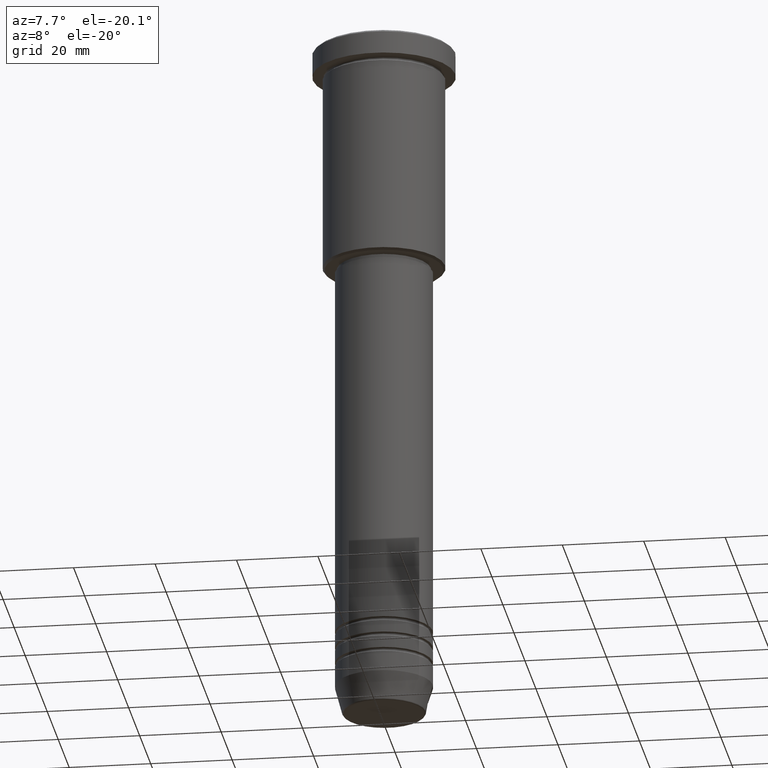
[diagram: clean part render]
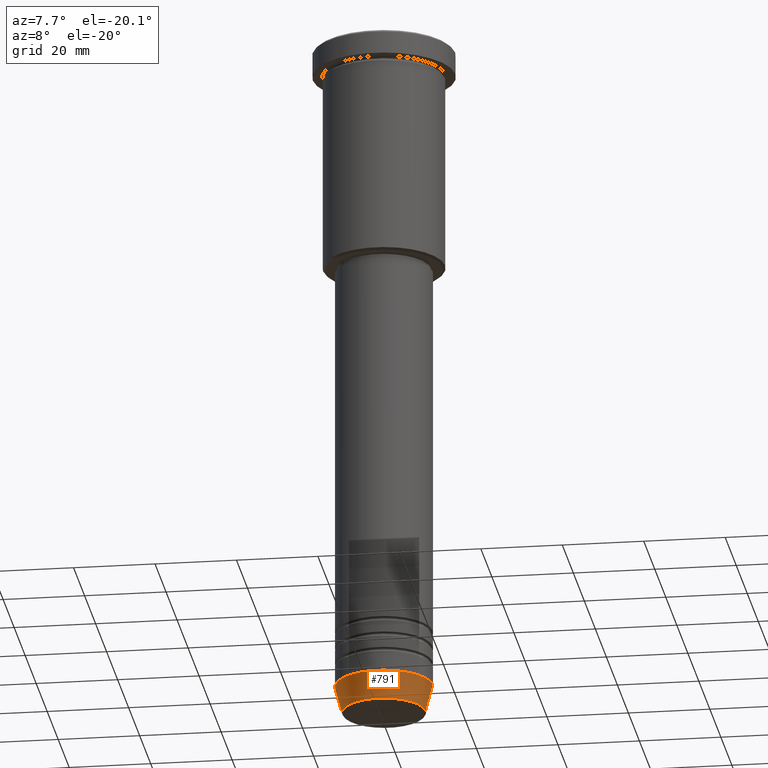
[diagram: same view with one face highlighted and labeled with its STEP entity id]
A machine part, auxiliary view. The second image highlights one B-rep face of the part: STEP entity #791.
In plain terms, the highlighted conical surface has half-angle 15 deg.
Its self-contained STEP definition (entity closure, byte-faithful):
#13 = DIRECTION ( 'NONE',  ( -0.000000000000000000, -0.000000000000000000, 1.000000000000000000 ) ) ;
#21 = ORIENTED_EDGE ( 'NONE', *, *, #370, .T. ) ;
#26 = EDGE_CURVE ( 'NONE', #859, #994, #574, .T. ) ;
#34 = CARTESIAN_POINT ( 'NONE',  ( 0.000000000000000000, 0.000000000000000000, -170.6294095225512706 ) ) ;
#49 = CONICAL_SURFACE ( 'NONE', #718, 12.00000000000000000, 0.2617993877991500740 ) ;
#104 = CARTESIAN_POINT ( 'NONE',  ( 12.00000000000000000, 0.000000000000000000, -164.0000000000000000 ) ) ;
#122 = EDGE_LOOP ( 'NONE', ( #1072, #808, #21, #130 ) ) ;
#130 = ORIENTED_EDGE ( 'NONE', *, *, #26, .F. ) ;
#153 = CARTESIAN_POINT ( 'NONE',  ( -10.22365507213719127, 1.360806402472382744E-15, -170.6294095225512706 ) ) ;
#187 = DIRECTION ( 'NONE',  ( -0.000000000000000000, -0.000000000000000000, 1.000000000000000000 ) ) ;
#199 = CARTESIAN_POINT ( 'NONE',  ( 0.000000000000000000, 0.000000000000000000, -164.0000000000000000 ) ) ;
#204 = DIRECTION ( 'NONE',  ( 1.000000000000000000, 0.000000000000000000, 0.000000000000000000 ) ) ;
#219 = EDGE_CURVE ( 'NONE', #893, #345, #446, .T. ) ;
#220 = DIRECTION ( 'NONE',  ( 1.000000000000000000, 0.000000000000000000, 0.000000000000000000 ) ) ;
#290 = CARTESIAN_POINT ( 'NONE',  ( 0.000000000000000000, 0.000000000000000000, -164.0000000000000000 ) ) ;
#328 = LINE ( 'NONE', #491, #813 ) ;
#345 = VERTEX_POINT ( 'NONE', #876 ) ;
#370 = EDGE_CURVE ( 'NONE', #345, #994, #978, .T. ) ;
#401 = EDGE_CURVE ( 'NONE', #893, #859, #328, .T. ) ;
#403 = DIRECTION ( 'NONE',  ( -0.2588190451025213501, 3.169619151431772337E-17, 0.9659258262890680902 ) ) ;
#438 = CARTESIAN_POINT ( 'NONE',  ( 12.00000000000000000, 0.000000000000000000, -164.0000000000000000 ) ) ;
#446 = CIRCLE ( 'NONE', #863, 10.22365507213719127 ) ;
#476 = FACE_OUTER_BOUND ( 'NONE', #122, .T. ) ;
#491 = CARTESIAN_POINT ( 'NONE',  ( -12.00000000000000000, 1.469576158976823947E-15, -164.0000000000000000 ) ) ;
#574 = CIRCLE ( 'NONE', #830, 12.00000000000000000 ) ;
#664 = CARTESIAN_POINT ( 'NONE',  ( -12.00000000000000000, 1.469576158976823947E-15, -164.0000000000000000 ) ) ;
#718 = AXIS2_PLACEMENT_3D ( 'NONE', #290, #13, #1008 ) ;
#791 = ADVANCED_FACE ( 'NONE', ( #476 ), #49, .T. ) ;
#808 = ORIENTED_EDGE ( 'NONE', *, *, #219, .T. ) ;
#813 = VECTOR ( 'NONE', #403, 1000.000000000000000 ) ;
#830 = AXIS2_PLACEMENT_3D ( 'NONE', #199, #187, #204 ) ;
#859 = VERTEX_POINT ( 'NONE', #664 ) ;
#863 = AXIS2_PLACEMENT_3D ( 'NONE', #34, #1028, #220 ) ;
#876 = CARTESIAN_POINT ( 'NONE',  ( 10.22365507213719127, 0.000000000000000000, -170.6294095225512706 ) ) ;
#893 = VERTEX_POINT ( 'NONE', #153 ) ;
#978 = LINE ( 'NONE', #438, #1131 ) ;
#994 = VERTEX_POINT ( 'NONE', #104 ) ;
#1008 = DIRECTION ( 'NONE',  ( 1.000000000000000000, 0.000000000000000000, 0.000000000000000000 ) ) ;
#1028 = DIRECTION ( 'NONE',  ( -0.000000000000000000, -0.000000000000000000, 1.000000000000000000 ) ) ;
#1072 = ORIENTED_EDGE ( 'NONE', *, *, #401, .F. ) ;
#1131 = VECTOR ( 'NONE', #1138, 1000.000000000000000 ) ;
#1138 = DIRECTION ( 'NONE',  ( 0.2588190451025213501, 0.000000000000000000, 0.9659258262890680902 ) ) ;